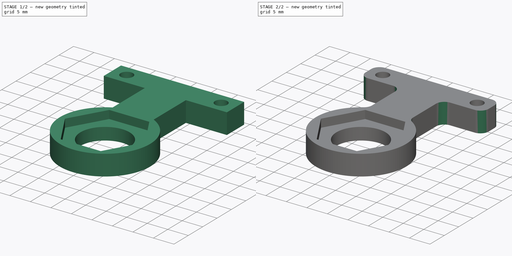
[diagram: build sequence overview — one tinted view per stage of 2, left to right]
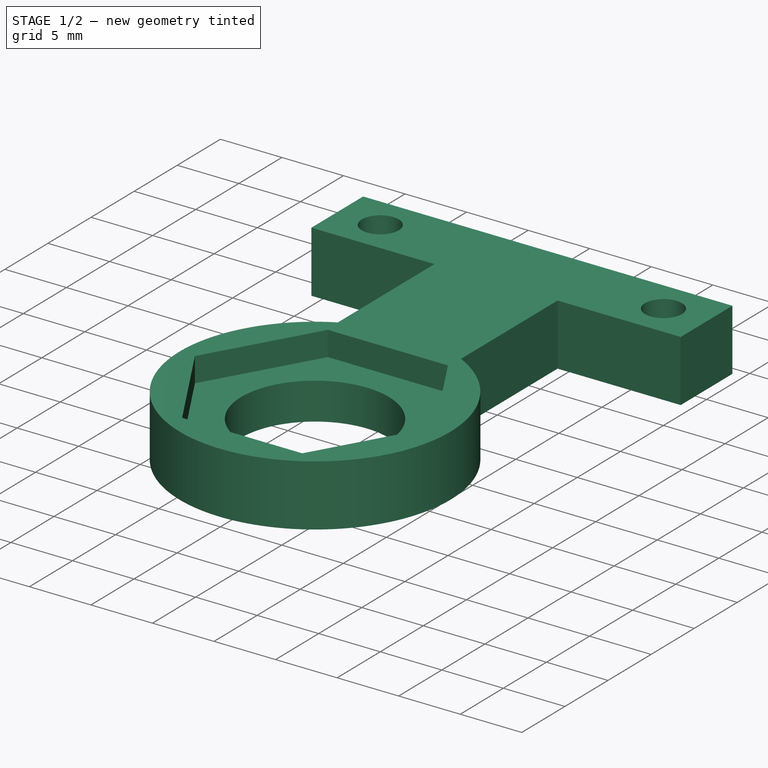
[diagram: stage 1 of 2 — iso view after this stage's code; geometry added in this stage tinted green]
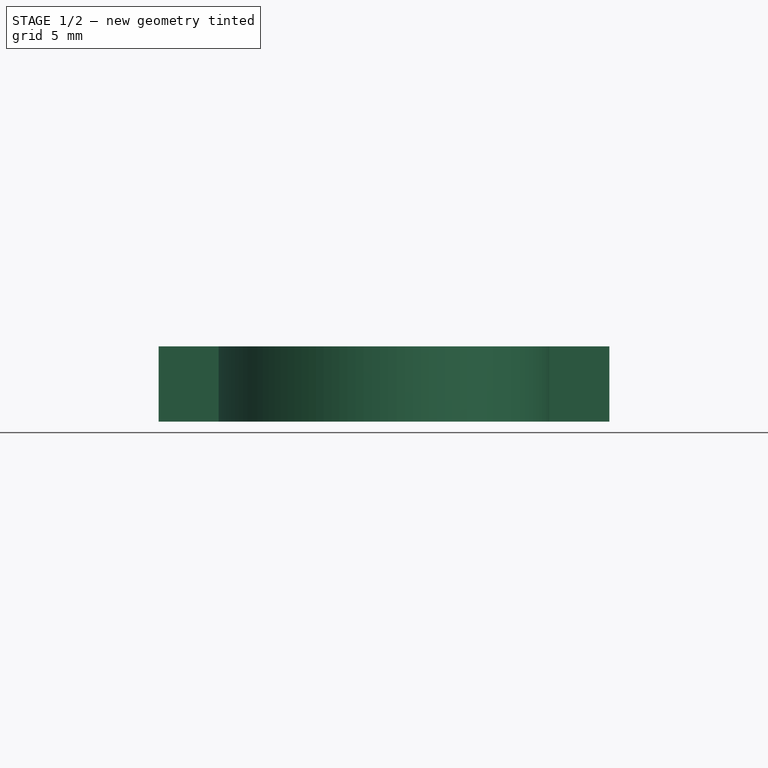
[diagram: stage 1 of 2 — front view after this stage's code; geometry added in this stage tinted green]
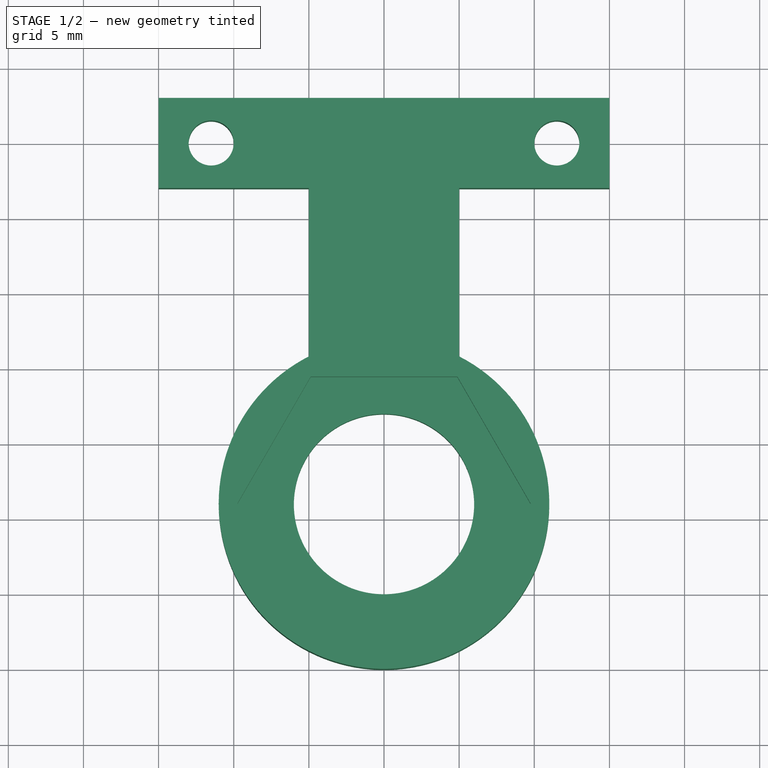
[diagram: stage 1 of 2 — top view after this stage's code; geometry added in this stage tinted green]
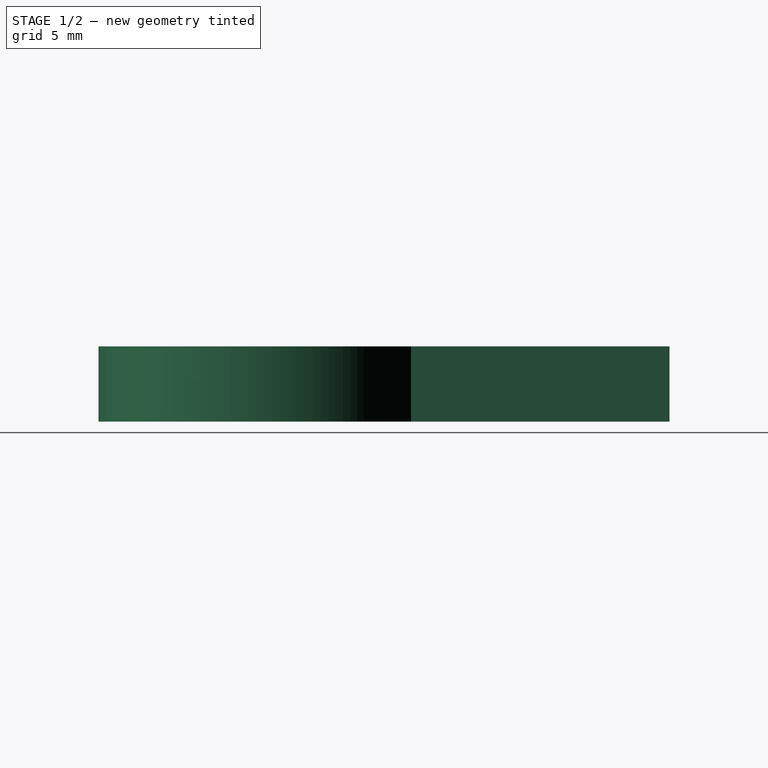
[diagram: stage 1 of 2 — right view after this stage's code; geometry added in this stage tinted green]
FCSTD DOCUMENT  (FreeCAD 0.16RUnknown)
Label: proximity_sensor_holder
License: CreativeCommons Attribution-ShareAlike
LicenseURL: http://creativecommons.org/licenses/by-sa/4.0/
objects: Sketcher::SketchObject×2, PartDesign::Pad×1, PartDesign::Pocket×1, PartDesign::Fillet×1
note: 7 computed .brp shape members not serialized (recipe doc carries the construction recipe); baked Part::Feature solids carry a one-line shape summary decoded from their .brp

FEATURE [Sketcher::SketchObject] Sketch
  sketch-geometry (11):
    g0: Circle CenterX=11.5 CenterY=0 CenterZ=0 NormalX=0 NormalY=0 NormalZ=1 Radius=1.5
    g1: Circle CenterX=-11.5 CenterY=0 CenterZ=0 NormalX=0 NormalY=0 NormalZ=1 Radius=1.5
    g2: LineSegment StartX=-15 StartY=-3 StartZ=0 EndX=-5 EndY=-3 EndZ=0
    g3: LineSegment StartX=-5 StartY=-3 StartZ=0 EndX=-5 EndY=-14.202 EndZ=0
    g4: LineSegment StartX=5 StartY=-14.202 StartZ=0 EndX=5 EndY=-3 EndZ=0
    g5: LineSegment StartX=5 StartY=-3 StartZ=0 EndX=15 EndY=-3 EndZ=0
    g6: LineSegment StartX=15 StartY=-3 StartZ=0 EndX=15 EndY=3 EndZ=0
    g7: LineSegment StartX=15 StartY=3 StartZ=0 EndX=-15 EndY=3 EndZ=0
    g8: LineSegment StartX=-15 StartY=3 StartZ=0 EndX=-15 EndY=-3 EndZ=0
    g9: ArcOfCircle CenterX=0 CenterY=-24 CenterZ=0 NormalX=0 NormalY=0 NormalZ=1 Radius=11 StartAngle=2.04266 EndAngle=7.38212
    g10: Circle CenterX=0 CenterY=-24 CenterZ=0 NormalX=0 NormalY=0 NormalZ=1 Radius=6
  constraints (32):
    c: Symmetric(g1,g0,g-2)
    c: Horizontal(g2)
    c: Coincident(g2,g3)
    c: Vertical(g3)
    c: Vertical(g4)
    c: Coincident(g4,g5)
    c: Horizontal(g5)
    c: Coincident(g5,g6)
    c: Coincident(g6,g7)
    c: Horizontal(g7)
    c: Coincident(g7,g8)
    c: Coincident(g8,g2)
    c: PointOnObject(g1,g-1)
    c: Equal(g0,g1)
    c: Radius(g0) = 1.5
    c: Vertical(g6)
    c: Vertical(g8)
    c: PointOnObject(g2,g5)
    c: Symmetric(g2,g4,g-2)
    c: Symmetric(g6,g5,g-1)
    c: DistanceX(g7,g6) = 30
    c: DistanceX(g1,g0) = 23
    c: DistanceY(g6,g6) = 6
    c: PointOnObject(g9,g-2)
    c: Radius(g9) = 11
    c: Coincident(g10,g9)
    c: Radius(g10) = 6
    c: Coincident(g3,g9)
    c: Coincident(g4,g9)
    c: Symmetric(g7,g6,g-2)
    c: DistanceY(g9,g-1) = 24
    c: DistanceX(g3,g4) = 10
FEATURE [PartDesign::Pad] Pad
  Length = 5
  Length2 = 100
  Sketch = -> Sketch
  Type = 0
FEATURE [Sketcher::SketchObject] Sketch001
  ExternalGeometry = -> [Pad]
  Placement = pos=(0,0,5) rot=(0,0,1;0rad)
  Support = -> Pad [Face13]
  sketch-geometry (7):
    g0: LineSegment StartX=4.87861 StartY=-32.45 StartZ=0 EndX=9.75722 EndY=-24 EndZ=0
    g1: LineSegment StartX=9.75722 StartY=-24 StartZ=0 EndX=4.87861 EndY=-15.55 EndZ=0
    g2: LineSegment StartX=4.87861 StartY=-15.55 StartZ=0 EndX=-4.87861 EndY=-15.55 EndZ=0
    g3: LineSegment StartX=-4.87861 StartY=-15.55 StartZ=0 EndX=-9.75722 EndY=-24 EndZ=0
    g4: LineSegment StartX=-9.75722 StartY=-24 StartZ=0 EndX=-4.87861 EndY=-32.45 EndZ=0
    g5: LineSegment StartX=-4.87861 StartY=-32.45 StartZ=0 EndX=4.87861 EndY=-32.45 EndZ=0
    g6: Circle [constr] CenterX=0 CenterY=-24 CenterZ=0 NormalX=0 NormalY=0 NormalZ=1 Radius=9.75722
  constraints (16):
    c: Coincident(g0,g1)
    c: Coincident(g1,g2)
    c: Coincident(g2,g3)
    c: Coincident(g3,g4)
    c: Coincident(g4,g5)
    c: Coincident(g5,g0)
    c: Equal(g0, g1-g5) x5
    c: PointOnObject(g0,g6)
    c: PointOnObject(g1,g6)
    c: PointOnObject(g2,g6)
    c: PointOnObject(g3,g6)
    c: PointOnObject(g4,g6)
    c: PointOnObject(g5,g6)
    c: Coincident(g6,g-3)
    c: Perpendicular(g-2,g2)
    c: DistanceY(g0,g1) = 16.9
FEATURE [PartDesign::Pocket] Pocket
  Length = 2
  Sketch = -> Sketch001
  Type = 0
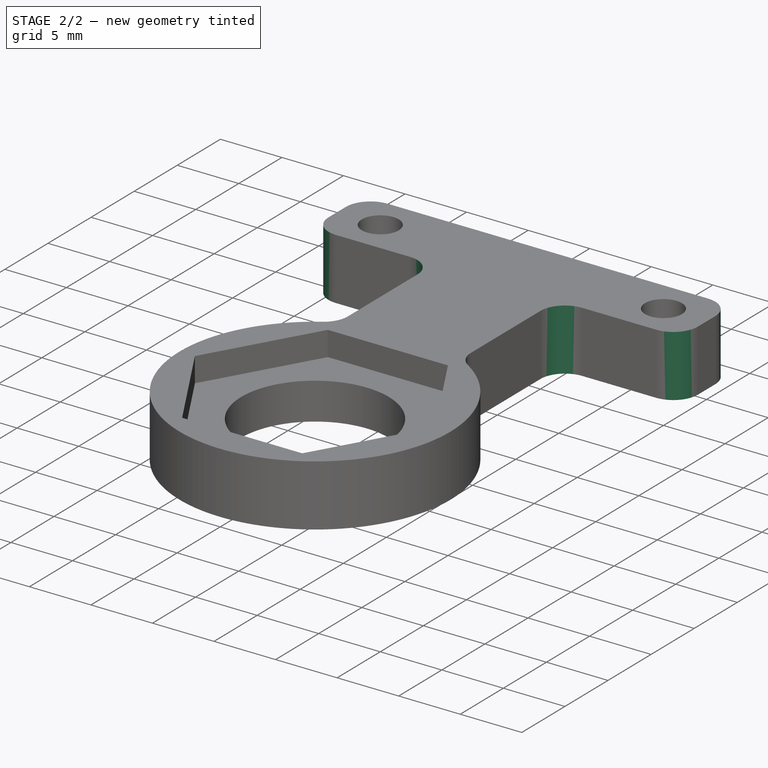
[diagram: stage 2 of 2 — iso view after this stage's code; geometry added in this stage tinted green]
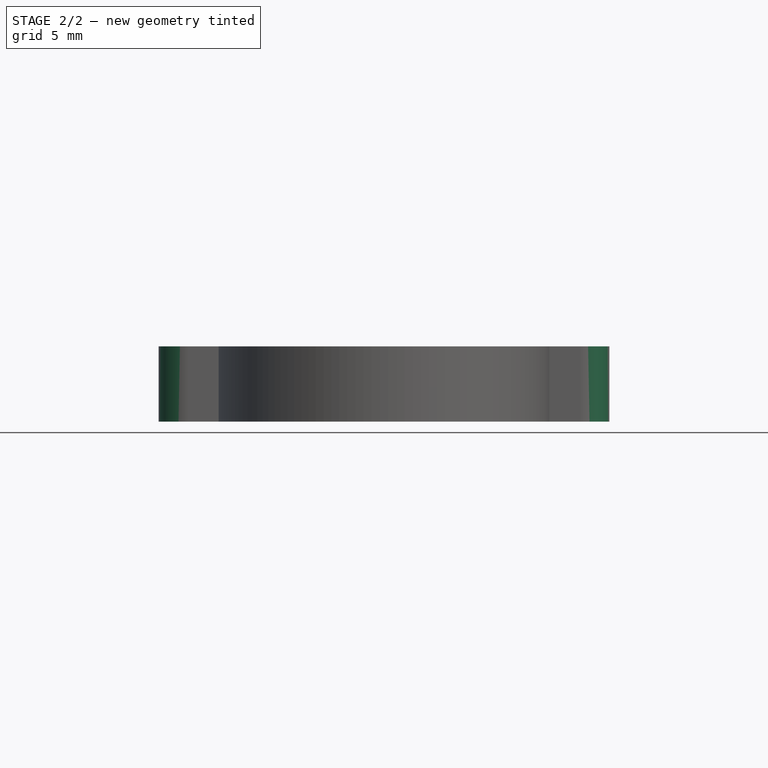
[diagram: stage 2 of 2 — front view after this stage's code; geometry added in this stage tinted green]
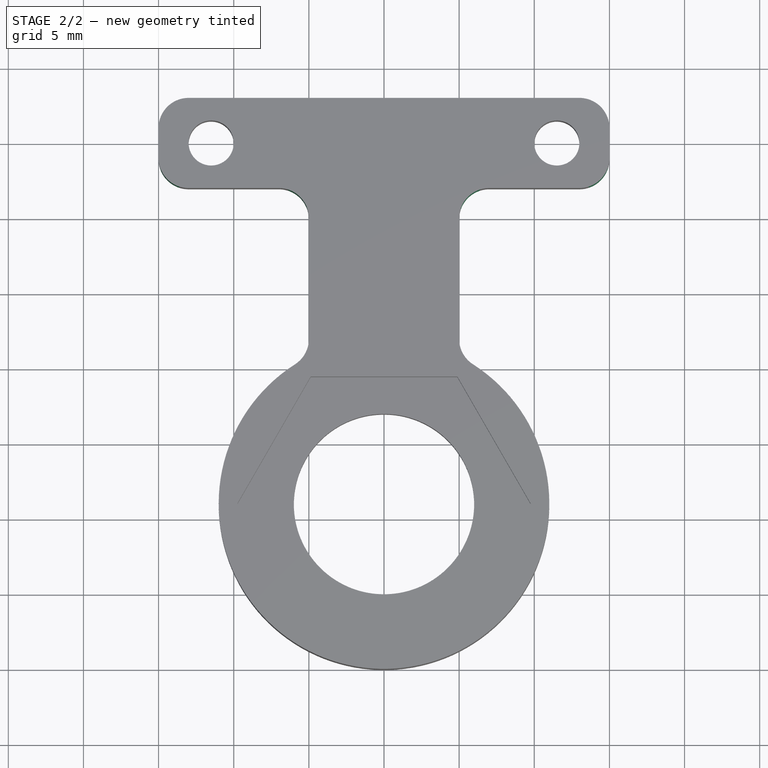
[diagram: stage 2 of 2 — top view after this stage's code; geometry added in this stage tinted green]
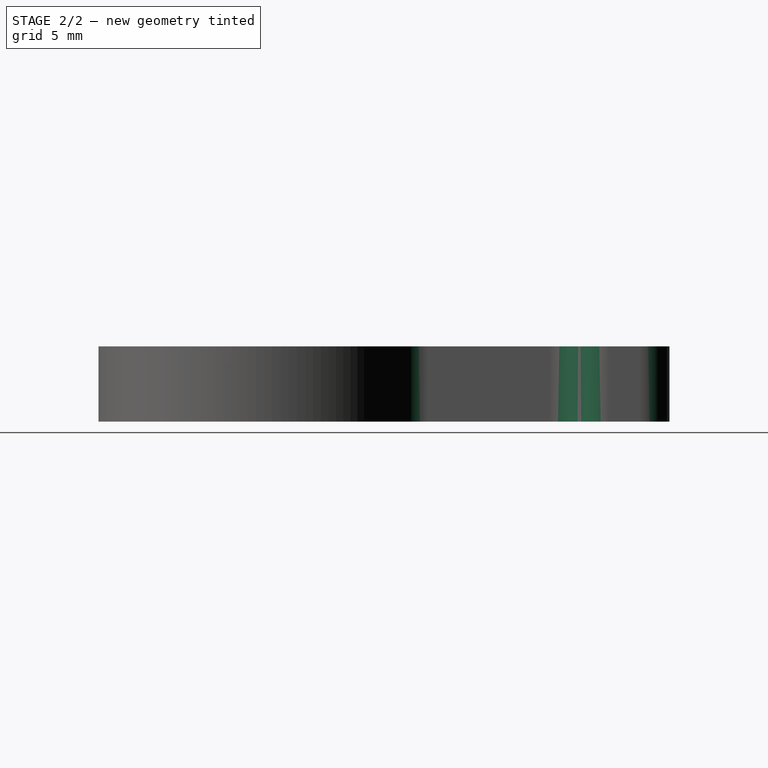
[diagram: stage 2 of 2 — right view after this stage's code; geometry added in this stage tinted green]
FEATURE [PartDesign::Fillet] Fillet
  Base = -> Pocket [Edge32,Edge35,Edge5,Edge1,Edge2,Edge34,Edge33,Edge8]
  Radius = 2
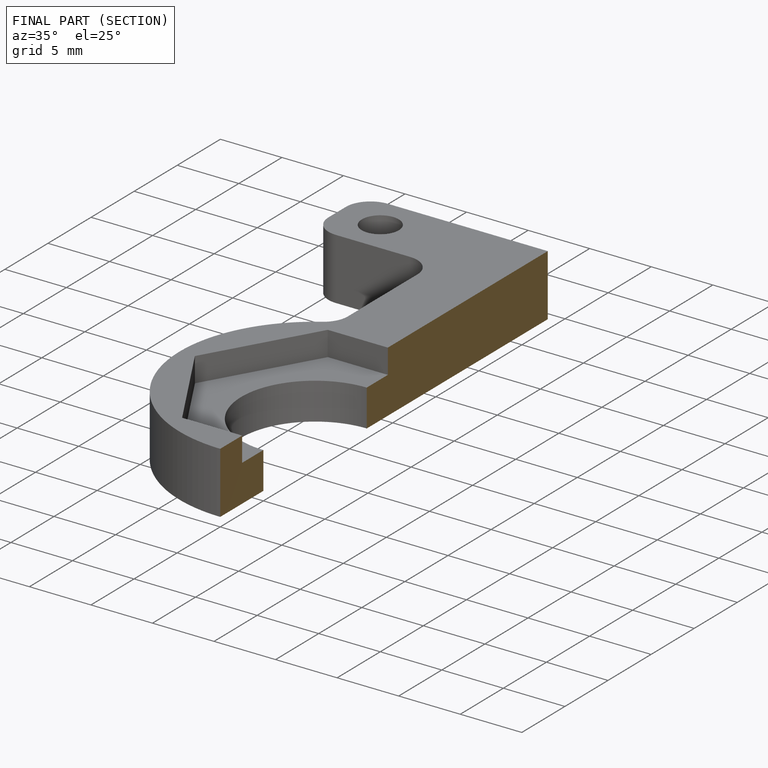
[diagram: finished part — half-section view (interior)]
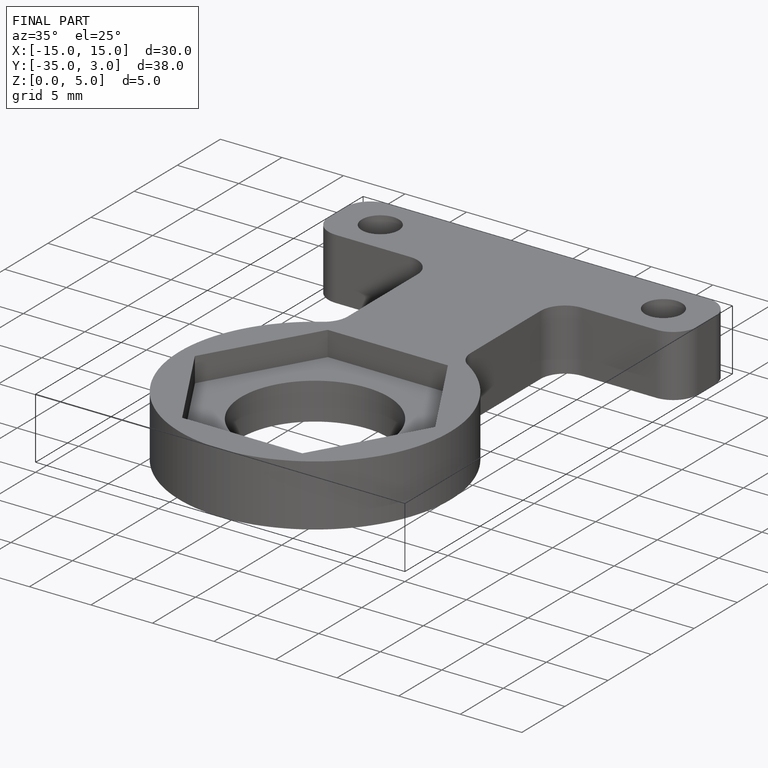
[diagram: finished part — iso view with bounding-box wireframe]
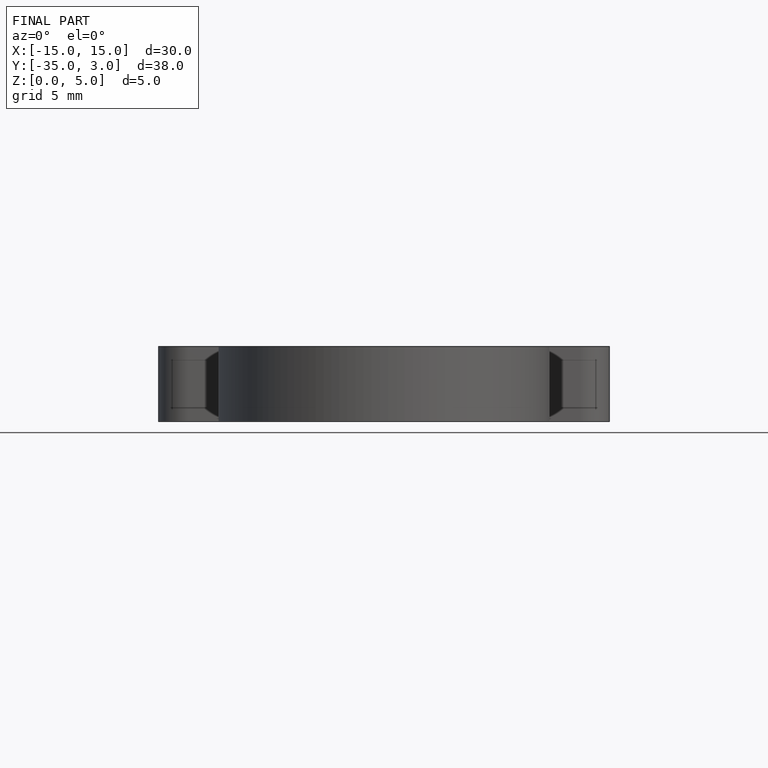
[diagram: finished part — front view with bounding-box wireframe]
